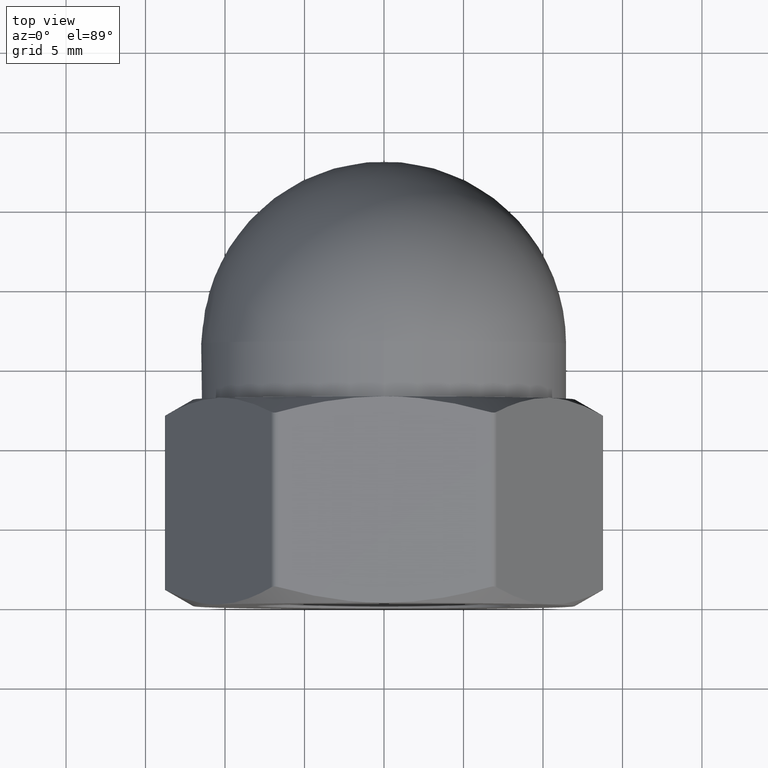
[diagram: clean part render]
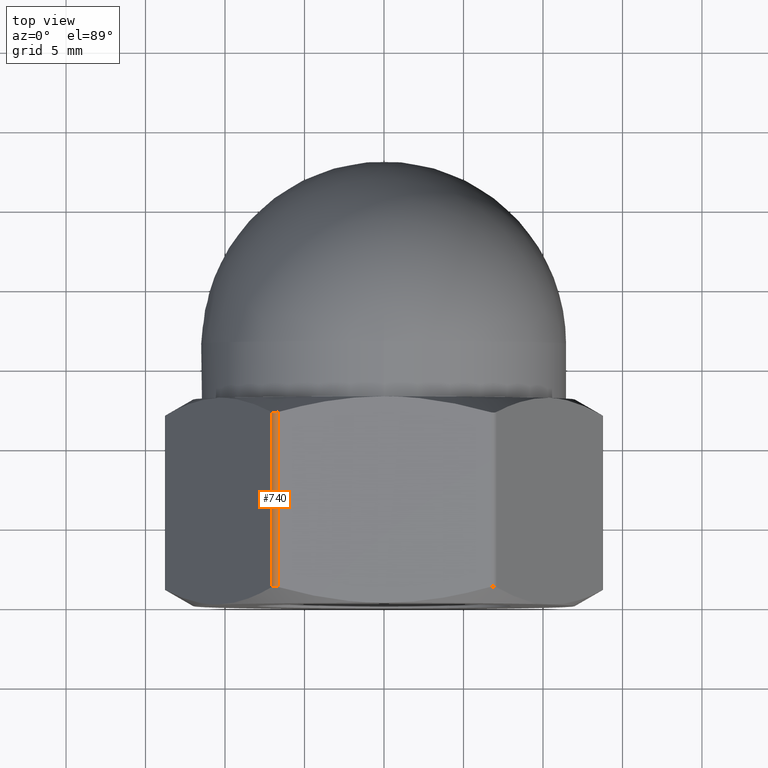
[diagram: same view with one face highlighted and labeled with its STEP entity id]
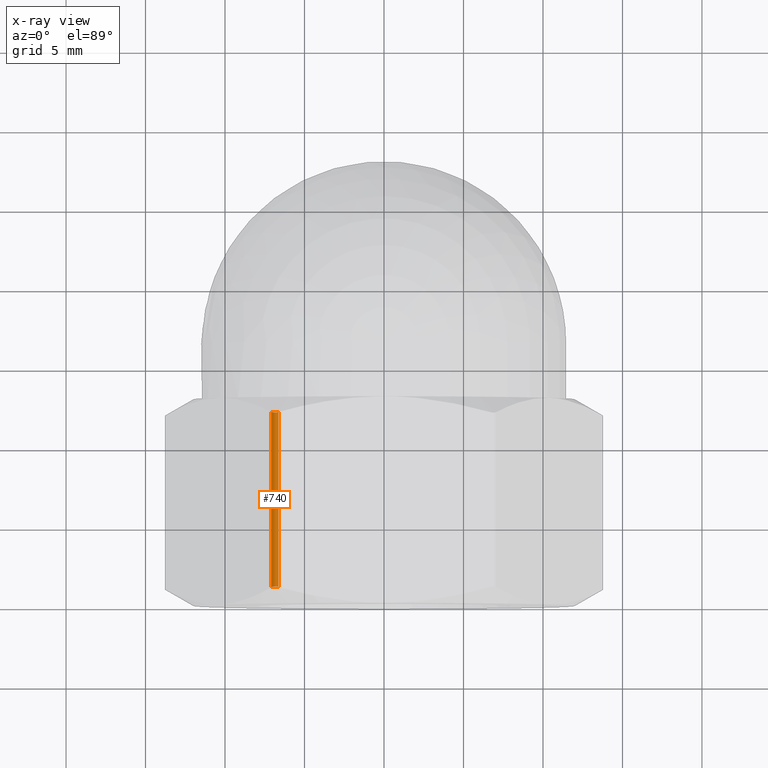
[diagram: x-ray of the same camera — body ghosted, the highlighted face saturated]
A machine part, top view. The second image highlights one B-rep face of the part: STEP entity #740.
The next image is the same camera in x-ray: the body ghosted, the highlighted face saturated — about 0% of this face is hidden behind the body in this view.
In plain terms, the highlighted cylindrical surface (edge-blend (fillet) strip) has radius 0.5 mm, axis along (0, -1, 0).
Its self-contained STEP definition (entity closure, byte-faithful):
#5 = VECTOR ( 'NONE', #249, 1000.000000000000000 ) ;
#40 = DIRECTION ( 'NONE',  ( 0.0000000000000000000, 0.0000000000000000000, -1.000000000000000000 ) ) ;
#54 = EDGE_CURVE ( 'NONE', #724, #326, #1197, .T. ) ;
#105 = CARTESIAN_POINT ( 'NONE',  ( -6.725391467499142600, 11.98622098699853700, 11.99999999999999800 ) ) ;
#200 = CARTESIAN_POINT ( 'NONE',  ( -6.639528095680758700, 12.01022088346242000, 12.00000000000000000 ) ) ;
#249 = DIRECTION ( 'NONE',  ( -0.0000000000000000000, 1.000000000000000000, -0.0000000000000000000 ) ) ;
#318 = CARTESIAN_POINT ( 'NONE',  ( -6.639528095680758700, 12.01022088346242000, 12.00000000000000000 ) ) ;
#326 = VERTEX_POINT ( 'NONE', #808 ) ;
#329 = CARTESIAN_POINT ( 'NONE',  ( -6.965490637025100200, 1.027182766975817800, 11.88924742842493700 ) ) ;
#492 = DIRECTION ( 'NONE',  ( 0.0000000000000000000, -1.000000000000000000, 0.0000000000000000000 ) ) ;
#512 = ORIENTED_EDGE ( 'NONE', *, *, #1061, .F. ) ;
#533 = DIRECTION ( 'NONE',  ( 0.0000000000000000000, -1.000000000000000000, 0.0000000000000000000 ) ) ;
#549 = CARTESIAN_POINT ( 'NONE',  ( -7.029609111663681600, 1.013779013001464800, 11.82435986124936600 ) ) ;
#565 = CARTESIAN_POINT ( 'NONE',  ( -7.072540797572914400, 12.01022088346238800, 11.74999999999999800 ) ) ;
#588 = CYLINDRICAL_SURFACE ( 'NONE', #837, 0.5000000000000004400 ) ;
#620 = CARTESIAN_POINT ( 'NONE',  ( -6.813644986382293200, 11.97281723302417500, 11.97691555569884700 ) ) ;
#641 = LINE ( 'NONE', #1071, #5 ) ;
#679 = CARTESIAN_POINT ( 'NONE',  ( -6.639528095680693900, 13.00000000000000000, 11.50000000000000000 ) ) ;
#724 = VERTEX_POINT ( 'NONE', #804 ) ;
#729 = ORIENTED_EDGE ( 'NONE', *, *, #942, .F. ) ;
#736 = CARTESIAN_POINT ( 'NONE',  ( -7.072540797572914400, 12.01022088346238800, 11.74999999999999800 ) ) ;
#739 = CARTESIAN_POINT ( 'NONE',  ( -6.639528095680755200, 0.9897791165375797700, 12.00000000000000000 ) ) ;
#740 = ADVANCED_FACE ( 'NONE', ( #873 ), #588, .T. ) ;
#744 = ORIENTED_EDGE ( 'NONE', *, *, #54, .F. ) ;
#804 = CARTESIAN_POINT ( 'NONE',  ( -6.639528095680755200, 0.9897791165375797700, 12.00000000000000000 ) ) ;
#808 = CARTESIAN_POINT ( 'NONE',  ( -7.072540797572901100, 0.9897791165376173000, 11.75000000000002100 ) ) ;
#837 = AXIS2_PLACEMENT_3D ( 'NONE', #679, #492, #40 ) ;
#873 = FACE_OUTER_BOUND ( 'NONE', #1225, .T. ) ;
#888 = VECTOR ( 'NONE', #533, 1000.000000000000000 ) ;
#938 = VERTEX_POINT ( 'NONE', #318 ) ;
#942 = EDGE_CURVE ( 'NONE', #1175, #938, #1281, .T. ) ;
#998 = ORIENTED_EDGE ( 'NONE', *, *, #1199, .F. ) ;
#1047 = CARTESIAN_POINT ( 'NONE',  ( -6.725359445022284900, 1.013770062315025000, 11.99999999999999800 ) ) ;
#1061 = EDGE_CURVE ( 'NONE', #938, #724, #1090, .T. ) ;
#1071 = CARTESIAN_POINT ( 'NONE',  ( -7.072540797572912700, 13.00000000000000000, 11.75000000000000200 ) ) ;
#1090 = LINE ( 'NONE', #1149, #888 ) ;
#1149 = CARTESIAN_POINT ( 'NONE',  ( -6.639528095680693900, 13.00000000000000000, 12.00000000000000000 ) ) ;
#1166 = CARTESIAN_POINT ( 'NONE',  ( -7.072540797572901100, 0.9897791165376173000, 11.75000000000002100 ) ) ;
#1175 = VERTEX_POINT ( 'NONE', #565 ) ;
#1197 = B_SPLINE_CURVE_WITH_KNOTS ( 'NONE', 3,
 ( #739, #1047, #1362, #329, #549, #1166 ),
 .UNSPECIFIED., .F., .F.,
 ( 4, 2, 4 ),
 ( 2.764779315700833900E-017, 0.0002638430375139681600, 0.0005276860750279086700 ),
 .UNSPECIFIED. ) ;
#1199 = EDGE_CURVE ( 'NONE', #326, #1175, #641, .T. ) ;
#1225 = EDGE_LOOP ( 'NONE', ( #729, #998, #744, #512 ) ) ;
#1247 = CARTESIAN_POINT ( 'NONE',  ( -7.029625122902118900, 11.98622993768510300, 11.82433212897090700 ) ) ;
#1281 = B_SPLINE_CURVE_WITH_KNOTS ( 'NONE', 3,
 ( #736, #1247, #1364, #620, #105, #200 ),
 .UNSPECIFIED., .F., .F.,
 ( 4, 2, 4 ),
 ( 1.939479807224432100E-018, 0.0002638430375139421900, 0.0005276860750278824300 ),
 .UNSPECIFIED. ) ;
#1362 = CARTESIAN_POINT ( 'NONE',  ( -6.812782701786577600, 1.027094147785110300, 11.97722948395738200 ) ) ;
#1364 = CARTESIAN_POINT ( 'NONE',  ( -6.966193649169822400, 11.97290585221489500, 11.88865763218902100 ) ) ;